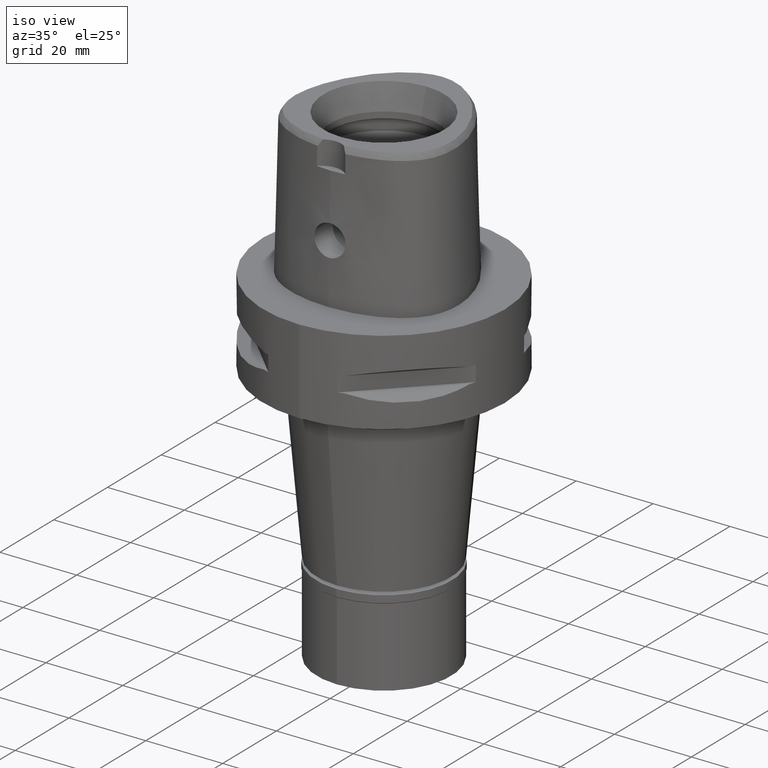
[diagram: clean part render]
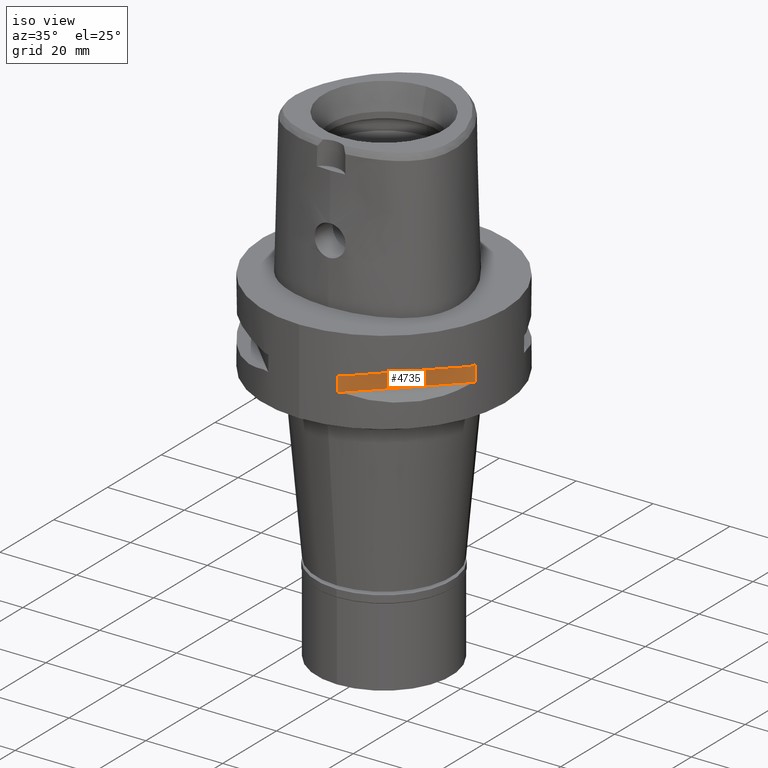
[diagram: same view with one face highlighted and labeled with its STEP entity id]
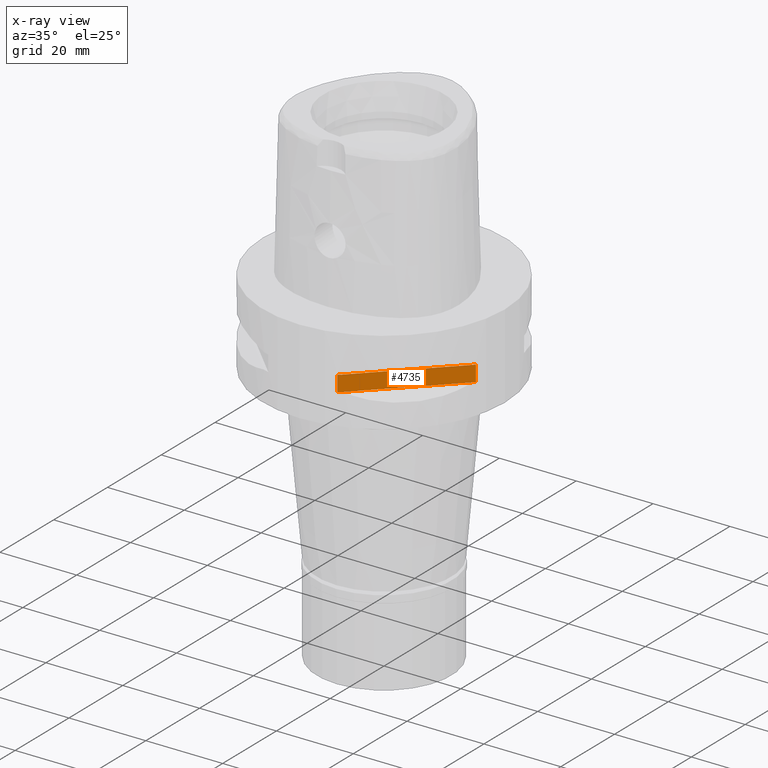
[diagram: x-ray of the same camera — body ghosted, the highlighted face saturated]
A machine part, iso view. The second image highlights one B-rep face of the part: STEP entity #4735.
The next image is the same camera in x-ray: the body ghosted, the highlighted face saturated — about 0% of this face is hidden behind the body in this view.
In plain terms, the highlighted planar face has unit normal (-0.7071, 0.7071, 0).
Its self-contained STEP definition (entity closure, byte-faithful):
#37 = VECTOR ( 'NONE', #1804, 1000.000000000000000 ) ;
#428 = VECTOR ( 'NONE', #4290, 1000.000000000000000 ) ;
#540 = LINE ( 'NONE', #3593, #428 ) ;
#948 = CARTESIAN_POINT ( 'NONE',  ( 33.72899346260000186, -5.444722215136000187, -9.950000000000001066 ) ) ;
#1098 = CARTESIAN_POINT ( 'NONE',  ( 8.981198972017999438, -30.19251670572000279, -9.950000000000001066 ) ) ;
#1263 = CARTESIAN_POINT ( 'NONE',  ( 8.981198972017999438, -30.19251670572000279, -14.05000000000000071 ) ) ;
#1307 = EDGE_CURVE ( 'NONE', #3097, #3199, #1851, .T. ) ;
#1323 = DIRECTION ( 'NONE',  ( 0.7071067811865474617, 0.7071067811865474617, 0.0000000000000000000 ) ) ;
#1466 = DIRECTION ( 'NONE',  ( 0.7071067811865474617, 0.7071067811865474617, 0.0000000000000000000 ) ) ;
#1560 = PLANE ( 'NONE',  #2121 ) ;
#1678 = VERTEX_POINT ( 'NONE', #4506 ) ;
#1778 = CARTESIAN_POINT ( 'NONE',  ( 8.981198972019999616, -30.19251670572000279, -9.950000000000001066 ) ) ;
#1804 = DIRECTION ( 'NONE',  ( 0.0000000000000000000, 0.0000000000000000000, -1.000000000000000000 ) ) ;
#1851 = LINE ( 'NONE', #4566, #37 ) ;
#2082 = EDGE_CURVE ( 'NONE', #3199, #1678, #3241, .T. ) ;
#2121 = AXIS2_PLACEMENT_3D ( 'NONE', #948, #4867, #3649 ) ;
#2394 = EDGE_LOOP ( 'NONE', ( #2629, #4641, #3927, #2952 ) ) ;
#2455 = VERTEX_POINT ( 'NONE', #4383 ) ;
#2629 = ORIENTED_EDGE ( 'NONE', *, *, #2823, .F. ) ;
#2823 = EDGE_CURVE ( 'NONE', #3097, #2455, #4939, .T. ) ;
#2952 = ORIENTED_EDGE ( 'NONE', *, *, #4335, .T. ) ;
#3097 = VERTEX_POINT ( 'NONE', #1778 ) ;
#3199 = VERTEX_POINT ( 'NONE', #1263 ) ;
#3241 = LINE ( 'NONE', #4788, #4630 ) ;
#3593 = CARTESIAN_POINT ( 'NONE',  ( 30.19251670572000279, -8.981198972017999438, -14.05000000000000071 ) ) ;
#3649 = DIRECTION ( 'NONE',  ( 0.0000000000000000000, 0.0000000000000000000, 1.000000000000000000 ) ) ;
#3927 = ORIENTED_EDGE ( 'NONE', *, *, #2082, .T. ) ;
#3989 = FACE_OUTER_BOUND ( 'NONE', #2394, .T. ) ;
#4290 = DIRECTION ( 'NONE',  ( 0.0000000000000000000, 0.0000000000000000000, 1.000000000000000000 ) ) ;
#4335 = EDGE_CURVE ( 'NONE', #1678, #2455, #540, .T. ) ;
#4383 = CARTESIAN_POINT ( 'NONE',  ( 30.19251670572000279, -8.981198972017999438, -9.950000000000001066 ) ) ;
#4506 = CARTESIAN_POINT ( 'NONE',  ( 30.19251670572000279, -8.981198972019999616, -14.05000000000000071 ) ) ;
#4566 = CARTESIAN_POINT ( 'NONE',  ( 8.981198972017999438, -30.19251670572000279, -9.950000000000001066 ) ) ;
#4626 = VECTOR ( 'NONE', #1466, 1000.000000000000114 ) ;
#4630 = VECTOR ( 'NONE', #1323, 1000.000000000000114 ) ;
#4641 = ORIENTED_EDGE ( 'NONE', *, *, #1307, .T. ) ;
#4735 = ADVANCED_FACE ( 'NONE', ( #3989 ), #1560, .F. ) ;
#4788 = CARTESIAN_POINT ( 'NONE',  ( 8.981198972017999438, -30.19251670572000279, -14.05000000000000071 ) ) ;
#4867 = DIRECTION ( 'NONE',  ( -0.7071067811865475727, 0.7071067811865475727, 0.0000000000000000000 ) ) ;
#4939 = LINE ( 'NONE', #1098, #4626 ) ;